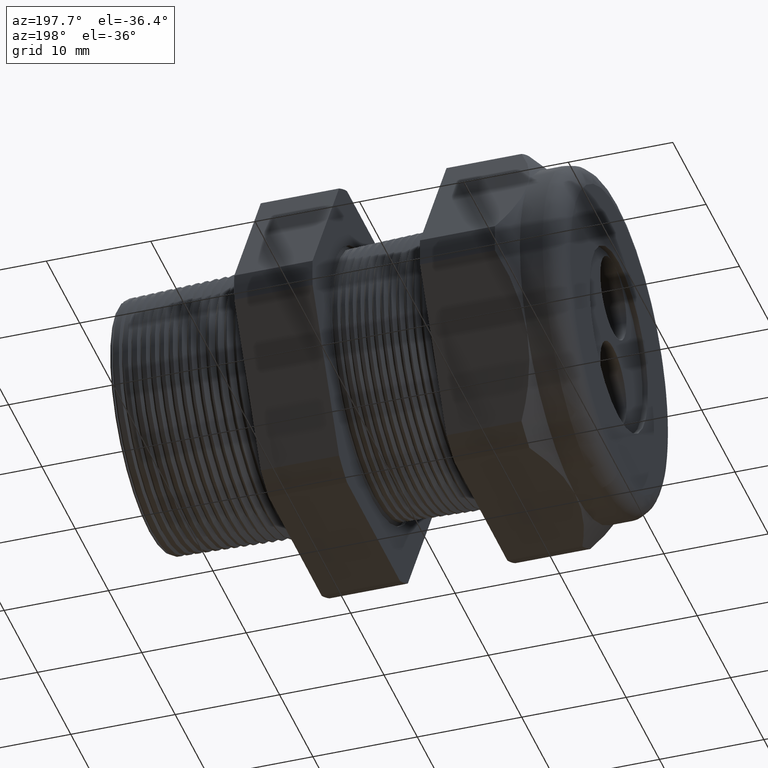
[diagram: clean part render]
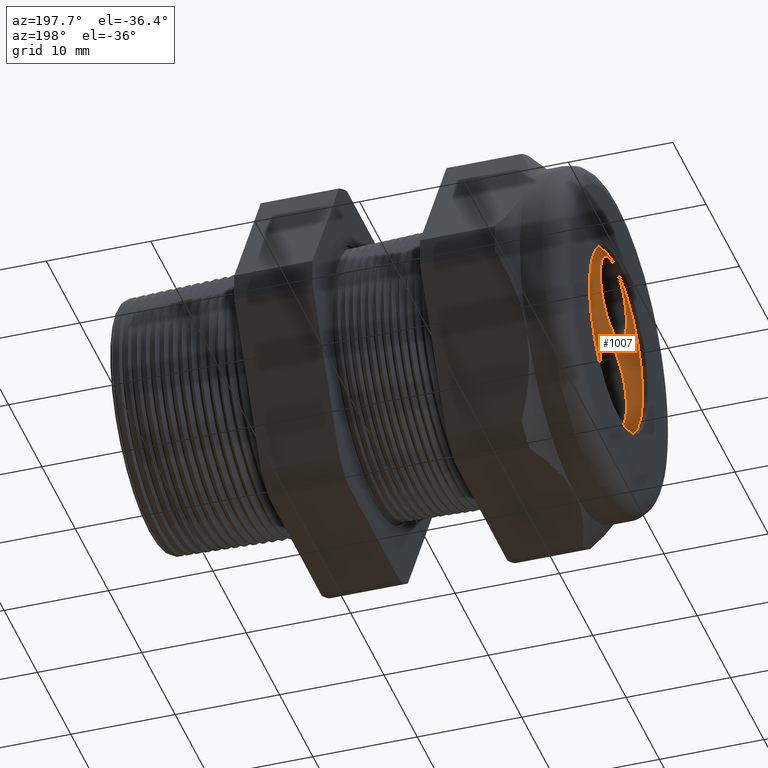
[diagram: same view with one face highlighted and labeled with its STEP entity id]
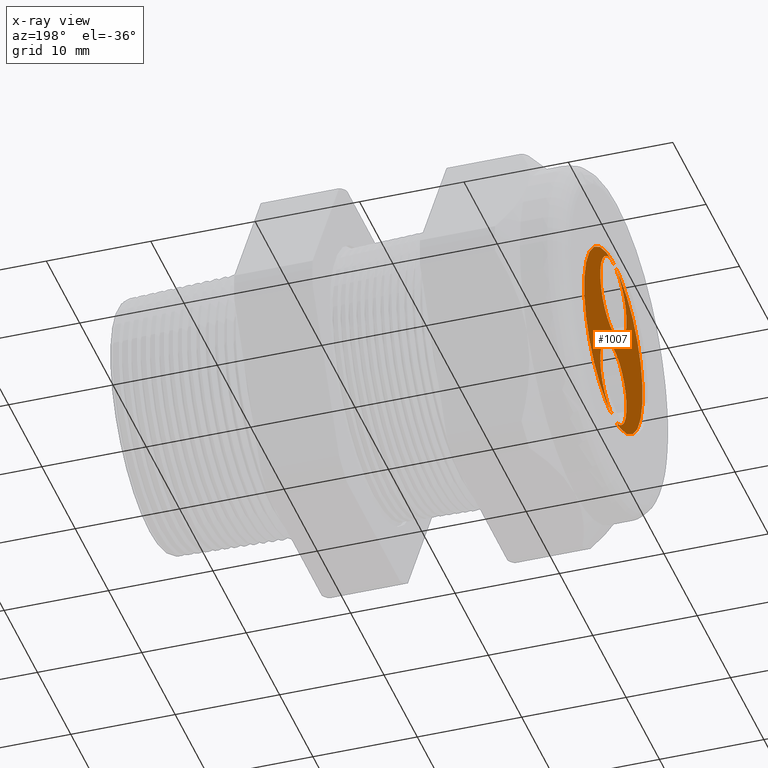
[diagram: x-ray of the same camera — body ghosted, the highlighted face saturated]
A machine part, auxiliary view. The second image highlights one B-rep face of the part: STEP entity #1007.
The next image is the same camera in x-ray: the body ghosted, the highlighted face saturated — about 0% of this face is hidden behind the body in this view.
In plain terms, the highlighted planar face has unit normal (-1, 0, 0).
Its self-contained STEP definition (entity closure, byte-faithful):
#239 = DIRECTION ( 'NONE',  ( 0.0000000000000000000, 0.0000000000000000000, 1.000000000000000000 ) ) ;
#240 = DIRECTION ( 'NONE',  ( -1.000000000000000000, 0.0000000000000000000, 0.0000000000000000000 ) ) ;
#241 = CARTESIAN_POINT ( 'NONE',  ( -1.509999999999999800, 0.0000000000000000000, -0.1893799999999999400 ) ) ;
#242 = AXIS2_PLACEMENT_3D ( 'NONE', #241, #240, #239 ) ;
#243 = CIRCLE ( 'NONE', #242, 0.1550000000000000000 ) ;
#244 = DIRECTION ( 'NONE',  ( 0.0000000000000000000, -6.982966722218764100E-015, -1.000000000000000000 ) ) ;
#245 = DIRECTION ( 'NONE',  ( -1.000000000000000000, 0.0000000000000000000, 0.0000000000000000000 ) ) ;
#246 = CARTESIAN_POINT ( 'NONE',  ( -1.509999999999999800, 1.322434237853789200E-015, 0.1893799999999999400 ) ) ;
#247 = AXIS2_PLACEMENT_3D ( 'NONE', #246, #245, #244 ) ;
#248 = CIRCLE ( 'NONE', #247, 0.1550000000000000000 ) ;
#1007 = ADVANCED_FACE ( 'NONE', ( #3887, #3886, #3885 ), #3952, .T. ) ;
#1052 = VERTEX_POINT ( 'NONE', #3990 ) ;
#1062 = VERTEX_POINT ( 'NONE', #4042 ) ;
#1079 = EDGE_CURVE ( 'NONE', #1052, #1062, #4017, .T. ) ;
#1088 = EDGE_CURVE ( 'NONE', #1122, #1121, #4066, .T. ) ;
#1121 = VERTEX_POINT ( 'NONE', #4120 ) ;
#1122 = VERTEX_POINT ( 'NONE', #4119 ) ;
#1801 = AXIS2_PLACEMENT_3D ( 'NONE', #1855, #1854, #1853 ) ;
#1802 = CIRCLE ( 'NONE', #1801, 0.3449999999999999200 ) ;
#1853 = DIRECTION ( 'NONE',  ( 0.0000000000000000000, 0.0000000000000000000, 1.000000000000000000 ) ) ;
#1854 = DIRECTION ( 'NONE',  ( -1.000000000000000000, 0.0000000000000000000, 0.0000000000000000000 ) ) ;
#1855 = CARTESIAN_POINT ( 'NONE',  ( -1.509999999999999800, 0.0000000000000000000, 0.0000000000000000000 ) ) ;
#2585 = EDGE_CURVE ( 'NONE', #2599, #2593, #5673, .T. ) ;
#2593 = VERTEX_POINT ( 'NONE', #5655 ) ;
#2599 = VERTEX_POINT ( 'NONE', #5644 ) ;
#2971 = ORIENTED_EDGE ( 'NONE', *, *, #2995, .F. ) ;
#2984 = ORIENTED_EDGE ( 'NONE', *, *, #5867, .T. ) ;
#2985 = ORIENTED_EDGE ( 'NONE', *, *, #1088, .F. ) ;
#2988 = ORIENTED_EDGE ( 'NONE', *, *, #1079, .T. ) ;
#2995 = EDGE_CURVE ( 'NONE', #2593, #2599, #248, .T. ) ;
#2996 = ORIENTED_EDGE ( 'NONE', *, *, #2585, .F. ) ;
#2997 = EDGE_LOOP ( 'NONE', ( #2984, #2988 ) ) ;
#2998 = EDGE_CURVE ( 'NONE', #1121, #1122, #243, .T. ) ;
#3014 = ORIENTED_EDGE ( 'NONE', *, *, #2998, .F. ) ;
#3063 = EDGE_LOOP ( 'NONE', ( #3014, #2985 ) ) ;
#3885 = FACE_OUTER_BOUND ( 'NONE', #2997, .T. ) ;
#3886 = FACE_BOUND ( 'NONE', #3063, .T. ) ;
#3887 = FACE_BOUND ( 'NONE', #4198, .T. ) ;
#3948 = DIRECTION ( 'NONE',  ( 0.0000000000000000000, 0.0000000000000000000, 1.000000000000000000 ) ) ;
#3949 = DIRECTION ( 'NONE',  ( -1.000000000000000000, 0.0000000000000000000, 0.0000000000000000000 ) ) ;
#3950 = CARTESIAN_POINT ( 'NONE',  ( -1.509999999999999800, 0.0000000000000000000, 0.0000000000000000000 ) ) ;
#3951 = AXIS2_PLACEMENT_3D ( 'NONE', #3950, #3949, #3948 ) ;
#3952 = PLANE ( 'NONE',  #3951 ) ;
#3990 = CARTESIAN_POINT ( 'NONE',  ( -1.509999999999999800, 4.225031457058367800E-017, -0.3449999999999999200 ) ) ;
#4014 = DIRECTION ( 'NONE',  ( -1.000000000000000000, 0.0000000000000000000, 0.0000000000000000000 ) ) ;
#4015 = CARTESIAN_POINT ( 'NONE',  ( -1.509999999999999800, 0.0000000000000000000, 0.0000000000000000000 ) ) ;
#4016 = AXIS2_PLACEMENT_3D ( 'NONE', #4015, #4014, #4077 ) ;
#4017 = CIRCLE ( 'NONE', #4016, 0.3449999999999999200 ) ;
#4042 = CARTESIAN_POINT ( 'NONE',  ( -1.509999999999999800, 0.0000000000000000000, 0.3449999999999999200 ) ) ;
#4058 = DIRECTION ( 'NONE',  ( 0.0000000000000000000, 0.0000000000000000000, 1.000000000000000000 ) ) ;
#4059 = DIRECTION ( 'NONE',  ( -1.000000000000000000, 0.0000000000000000000, 0.0000000000000000000 ) ) ;
#4060 = CARTESIAN_POINT ( 'NONE',  ( -1.509999999999999800, 0.0000000000000000000, -0.1893799999999999400 ) ) ;
#4061 = AXIS2_PLACEMENT_3D ( 'NONE', #4060, #4059, #4058 ) ;
#4066 = CIRCLE ( 'NONE', #4061, 0.1550000000000000000 ) ;
#4077 = DIRECTION ( 'NONE',  ( 0.0000000000000000000, 0.0000000000000000000, 1.000000000000000000 ) ) ;
#4119 = CARTESIAN_POINT ( 'NONE',  ( -1.509999999999999800, 1.898202538678397900E-017, -0.3443799999999999100 ) ) ;
#4120 = CARTESIAN_POINT ( 'NONE',  ( -1.509999999999999800, 0.0000000000000000000, -0.03437999999999995200 ) ) ;
#4198 = EDGE_LOOP ( 'NONE', ( #2971, #2996 ) ) ;
#5644 = CARTESIAN_POINT ( 'NONE',  ( -1.509999999999999800, 1.341416263240573200E-015, 0.03437999999999995200 ) ) ;
#5655 = CARTESIAN_POINT ( 'NONE',  ( -1.509999999999999800, 1.322434237853789200E-015, 0.3443799999999999100 ) ) ;
#5669 = DIRECTION ( 'NONE',  ( 0.0000000000000000000, -6.982966722218764100E-015, -1.000000000000000000 ) ) ;
#5670 = DIRECTION ( 'NONE',  ( -1.000000000000000000, 0.0000000000000000000, 0.0000000000000000000 ) ) ;
#5671 = CARTESIAN_POINT ( 'NONE',  ( -1.509999999999999800, 1.322434237853789200E-015, 0.1893799999999999400 ) ) ;
#5672 = AXIS2_PLACEMENT_3D ( 'NONE', #5671, #5670, #5669 ) ;
#5673 = CIRCLE ( 'NONE', #5672, 0.1550000000000000000 ) ;
#5867 = EDGE_CURVE ( 'NONE', #1062, #1052, #1802, .T. ) ;